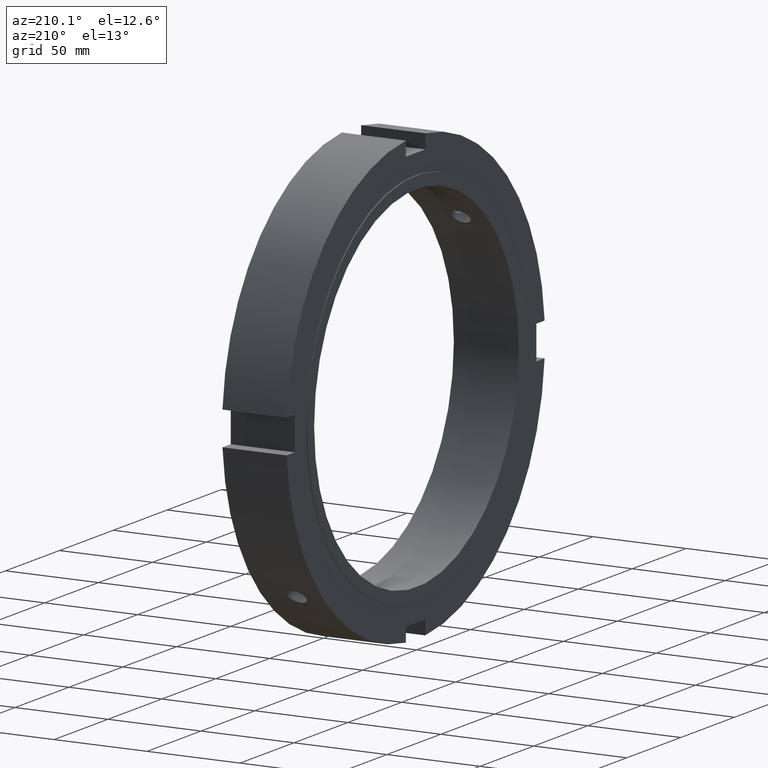
[diagram: clean part render]
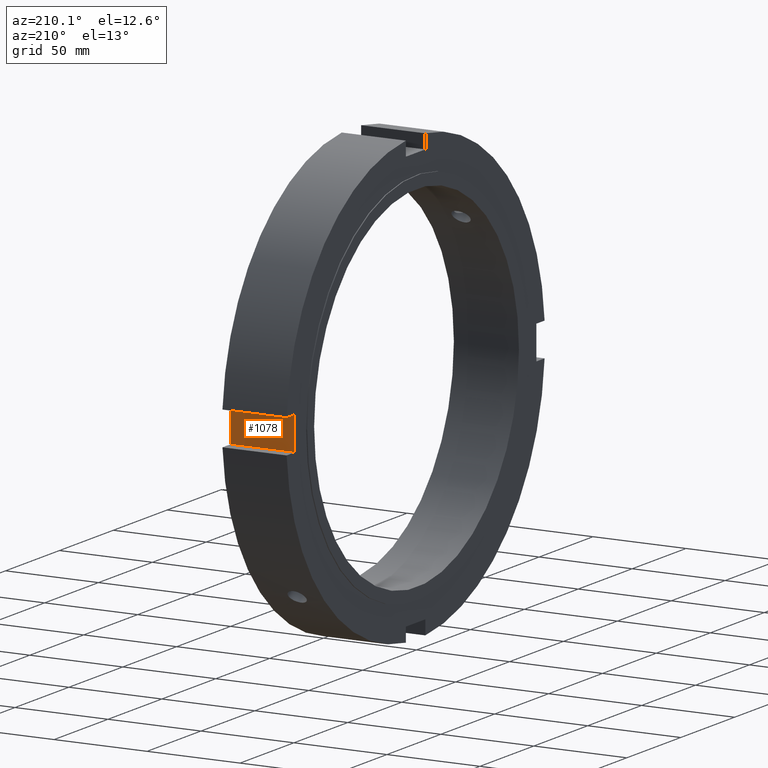
[diagram: same view with one face highlighted and labeled with its STEP entity id]
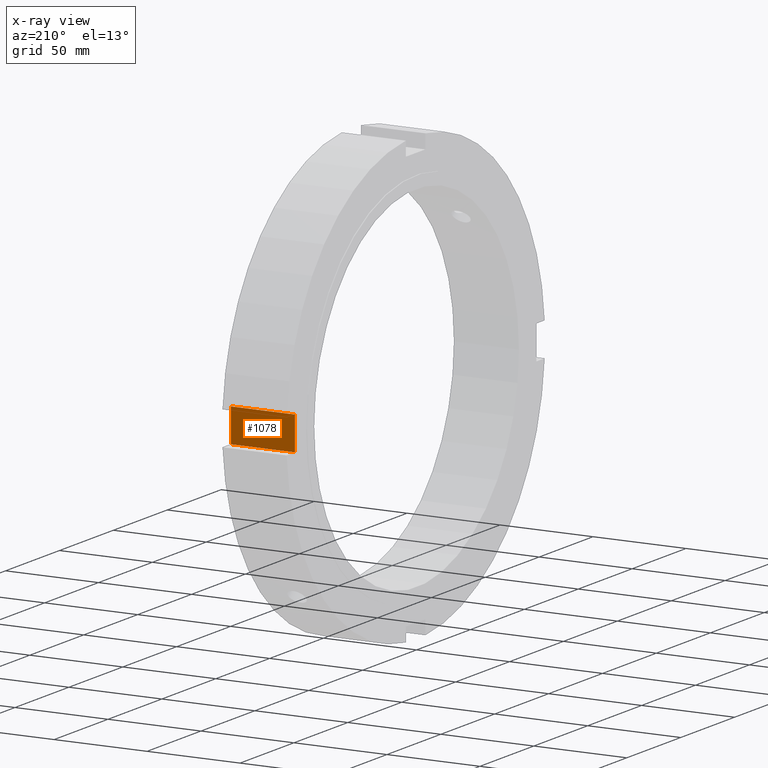
[diagram: x-ray of the same camera — body ghosted, the highlighted face saturated]
A machine part, auxiliary view. The second image highlights one B-rep face of the part: STEP entity #1078.
The next image is the same camera in x-ray: the body ghosted, the highlighted face saturated — about 0% of this face is hidden behind the body in this view.
In plain terms, the highlighted planar face has unit normal (0, -1, 0).
Its self-contained STEP definition (entity closure, byte-faithful):
#963=CARTESIAN_POINT('',(34.999999999999972,112.0,-8.999999999999993));
#964=VERTEX_POINT('',#963);
#971=CARTESIAN_POINT('',(34.999999999999972,112.0,8.999999999999993));
#972=VERTEX_POINT('',#971);
#973=CARTESIAN_POINT('',(34.999999999999972,112.0,-8.999999999999993));
#974=DIRECTION('',(0.0,0.0,1.0));
#975=VECTOR('',#974,17.999999999999986);
#976=LINE('',#973,#975);
#977=EDGE_CURVE('',#964,#972,#976,.T.);
#1019=CARTESIAN_POINT('',(0.499999999999972,112.0,-8.999999999999993));
#1020=VERTEX_POINT('',#1019);
#1027=CARTESIAN_POINT('',(34.999999999999972,112.0,-8.999999999999993));
#1028=DIRECTION('',(-1.0,0.0,0.0));
#1029=VECTOR('',#1028,34.5);
#1030=LINE('',#1027,#1029);
#1031=EDGE_CURVE('',#964,#1020,#1030,.T.);
#1043=CARTESIAN_POINT('',(0.499999999999972,112.0,8.999999999999993));
#1044=VERTEX_POINT('',#1043);
#1053=CARTESIAN_POINT('',(34.999999999999972,112.0,8.999999999999993));
#1054=DIRECTION('',(-1.0,0.0,0.0));
#1055=VECTOR('',#1054,34.5);
#1056=LINE('',#1053,#1055);
#1057=EDGE_CURVE('',#972,#1044,#1056,.T.);
#1062=CARTESIAN_POINT('',(34.999999999999972,112.0,8.999999999999993));
#1063=DIRECTION('',(0.0,-1.0,0.0));
#1064=DIRECTION('',(0.0,0.0,-1.0));
#1065=AXIS2_PLACEMENT_3D('',#1062,#1063,#1064);
#1066=PLANE('',#1065);
#1067=CARTESIAN_POINT('',(0.499999999999969,112.0,8.999999999999993));
#1068=DIRECTION('',(0.0,0.0,-1.0));
#1069=VECTOR('',#1068,17.999999999999986);
#1070=LINE('',#1067,#1069);
#1071=EDGE_CURVE('',#1044,#1020,#1070,.T.);
#1072=ORIENTED_EDGE('',*,*,#1071,.F.);
#1073=ORIENTED_EDGE('',*,*,#1057,.F.);
#1074=ORIENTED_EDGE('',*,*,#977,.F.);
#1075=ORIENTED_EDGE('',*,*,#1031,.T.);
#1076=EDGE_LOOP('',(#1072,#1073,#1074,#1075));
#1077=FACE_OUTER_BOUND('',#1076,.T.);
#1078=ADVANCED_FACE('',(#1077),#1066,.F.);